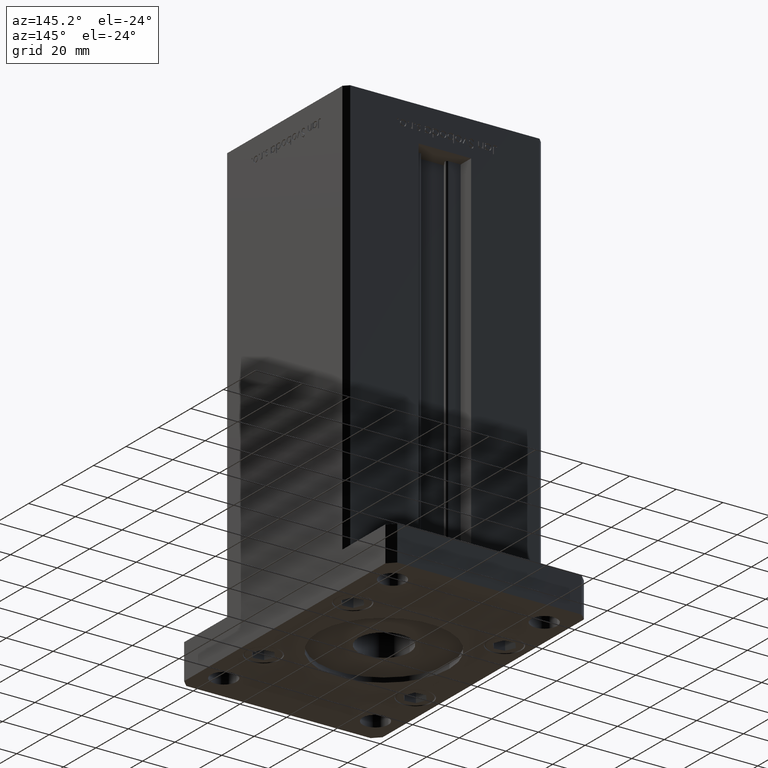
[diagram: clean part render]
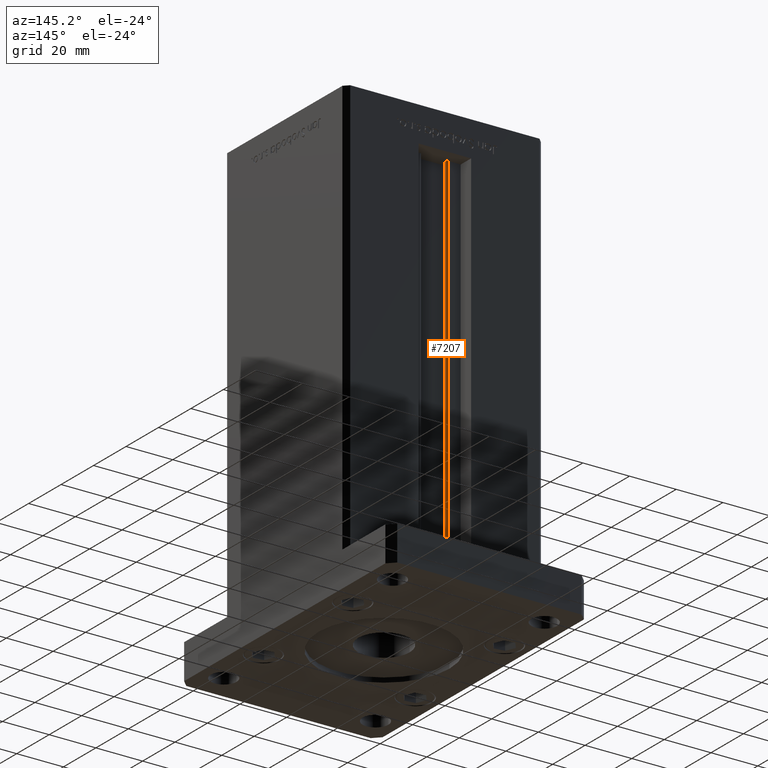
[diagram: same view with one face highlighted and labeled with its STEP entity id]
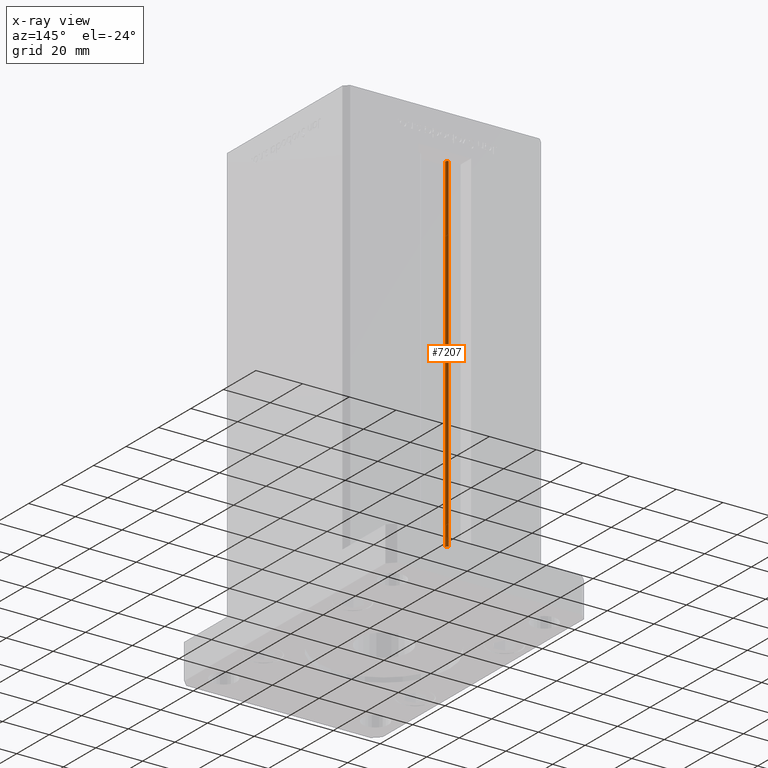
[diagram: x-ray of the same camera — body ghosted, the highlighted face saturated]
A machine part, auxiliary view. The second image highlights one B-rep face of the part: STEP entity #7207.
The next image is the same camera in x-ray: the body ghosted, the highlighted face saturated — about 2% of this face is hidden behind the body in this view.
In plain terms, the highlighted cylindrical surface (edge-blend (fillet) strip) has radius 0.9333 mm, axis along (0, 0, 1).
Its self-contained STEP definition (entity closure, byte-faithful):
#2503 = EDGE_CURVE ( 'NONE', #52567, #49110, #35778, .T. ) ;
#5726 = CARTESIAN_POINT ( 'NONE',  ( -6.183333333333999704, 30.06666666666599141, 0.000000000000000000 ) ) ;
#7207 = ADVANCED_FACE ( 'NONE', ( #10029 ), #18133, .T. ) ;
#7293 = EDGE_CURVE ( 'NONE', #29562, #49110, #30600, .T. ) ;
#8097 = DIRECTION ( 'NONE',  ( 1.000000000000000000, 0.000000000000000000, 0.000000000000000000 ) ) ;
#9231 = DIRECTION ( 'NONE',  ( 1.000000000000000000, 0.000000000000000000, 0.000000000000000000 ) ) ;
#9385 = CARTESIAN_POINT ( 'NONE',  ( -6.183333333333999704, 30.99999999999999289, 0.000000000000000000 ) ) ;
#10029 = FACE_OUTER_BOUND ( 'NONE', #34741, .T. ) ;
#10538 = VERTEX_POINT ( 'NONE', #43757 ) ;
#12515 = AXIS2_PLACEMENT_3D ( 'NONE', #49602, #25340, #8097 ) ;
#13543 = CARTESIAN_POINT ( 'NONE',  ( -6.183333333333999704, 30.06666666666599141, 0.000000000000000000 ) ) ;
#14573 = CARTESIAN_POINT ( 'NONE',  ( -5.249999999999997335, 30.06666666666599141, 0.000000000000000000 ) ) ;
#15071 = DIRECTION ( 'NONE',  ( -0.000000000000000000, -0.000000000000000000, -1.000000000000000000 ) ) ;
#15448 = CARTESIAN_POINT ( 'NONE',  ( -6.183333333333999704, 30.99999999999999289, 148.5000000000000000 ) ) ;
#18087 = CARTESIAN_POINT ( 'NONE',  ( -5.249999999999997335, 30.06666666666599141, 148.5000000000000000 ) ) ;
#18133 = CYLINDRICAL_SURFACE ( 'NONE', #40052, 0.9333333333340015914 ) ;
#18845 = CARTESIAN_POINT ( 'NONE',  ( -5.249999999999997335, 30.06666666666599141, 0.000000000000000000 ) ) ;
#22168 = DIRECTION ( 'NONE',  ( 1.000000000000000000, 0.000000000000000000, 0.000000000000000000 ) ) ;
#23136 = DIRECTION ( 'NONE',  ( -0.000000000000000000, -0.000000000000000000, 1.000000000000000000 ) ) ;
#25340 = DIRECTION ( 'NONE',  ( 0.000000000000000000, 0.000000000000000000, -1.000000000000000000 ) ) ;
#25824 = DIRECTION ( 'NONE',  ( -0.000000000000000000, -0.000000000000000000, 1.000000000000000000 ) ) ;
#26749 = VECTOR ( 'NONE', #25824, 1000.000000000000000 ) ;
#29562 = VERTEX_POINT ( 'NONE', #15448 ) ;
#29971 = ORIENTED_EDGE ( 'NONE', *, *, #38905, .T. ) ;
#30454 = VECTOR ( 'NONE', #23136, 1000.000000000000000 ) ;
#30600 = CIRCLE ( 'NONE', #12515, 0.9333333333340015914 ) ;
#30765 = DIRECTION ( 'NONE',  ( -0.000000000000000000, -0.000000000000000000, 1.000000000000000000 ) ) ;
#32586 = EDGE_CURVE ( 'NONE', #10538, #52567, #44626, .T. ) ;
#34741 = EDGE_LOOP ( 'NONE', ( #49798, #52197, #29971, #44922 ) ) ;
#35778 = LINE ( 'NONE', #18845, #30454 ) ;
#37403 = LINE ( 'NONE', #9385, #26749 ) ;
#38905 = EDGE_CURVE ( 'NONE', #10538, #29562, #37403, .T. ) ;
#40052 = AXIS2_PLACEMENT_3D ( 'NONE', #5726, #30765, #22168 ) ;
#43757 = CARTESIAN_POINT ( 'NONE',  ( -6.183333333333999704, 30.99999999999999289, 0.000000000000000000 ) ) ;
#44626 = CIRCLE ( 'NONE', #49815, 0.9333333333340015914 ) ;
#44922 = ORIENTED_EDGE ( 'NONE', *, *, #7293, .T. ) ;
#49110 = VERTEX_POINT ( 'NONE', #18087 ) ;
#49602 = CARTESIAN_POINT ( 'NONE',  ( -6.183333333333999704, 30.06666666666599141, 148.5000000000000000 ) ) ;
#49798 = ORIENTED_EDGE ( 'NONE', *, *, #2503, .F. ) ;
#49815 = AXIS2_PLACEMENT_3D ( 'NONE', #13543, #15071, #9231 ) ;
#52197 = ORIENTED_EDGE ( 'NONE', *, *, #32586, .F. ) ;
#52567 = VERTEX_POINT ( 'NONE', #14573 ) ;